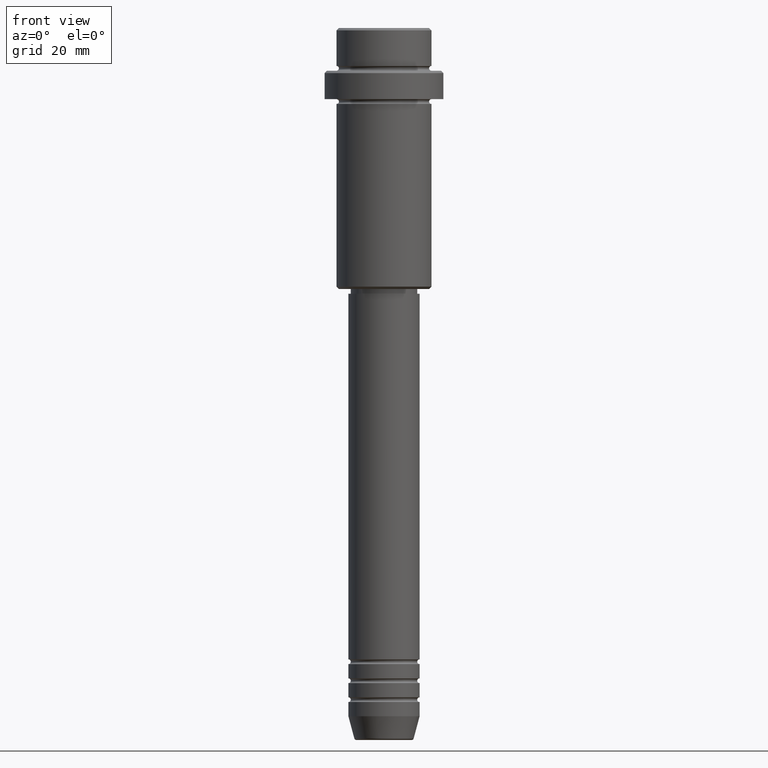
[diagram: clean part render]
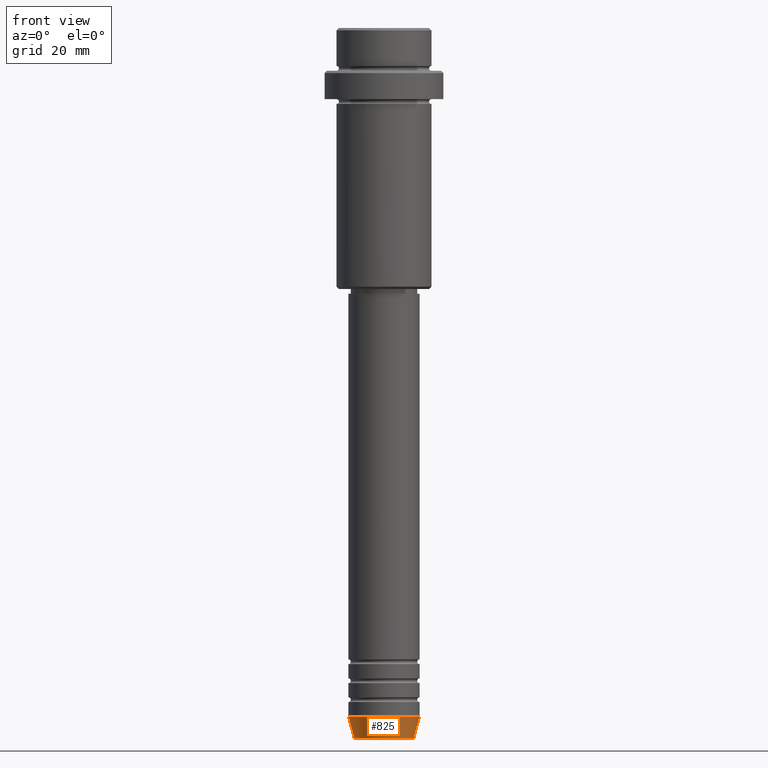
[diagram: same view with one face highlighted and labeled with its STEP entity id]
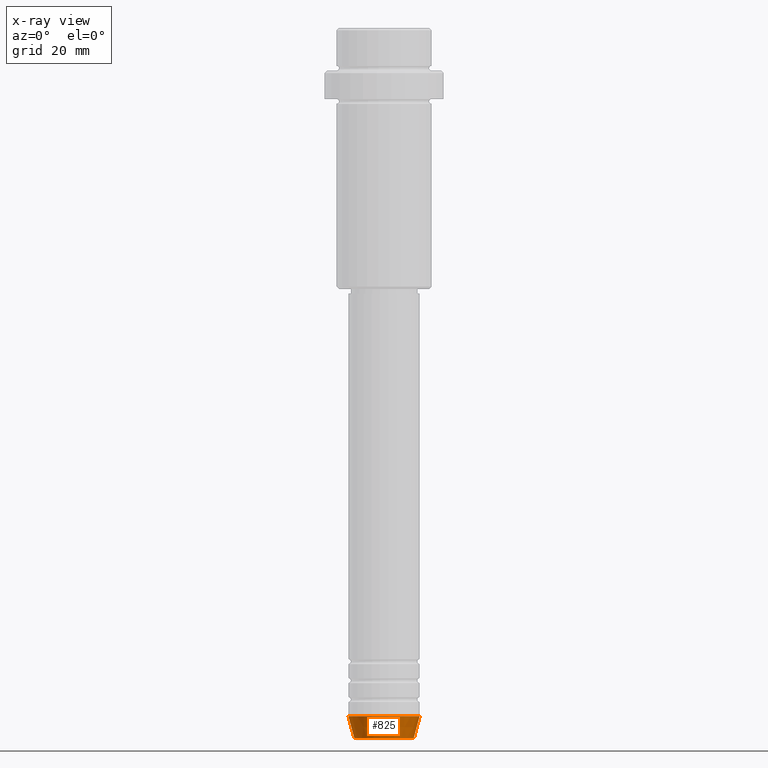
[diagram: x-ray of the same camera — body ghosted, the highlighted face saturated]
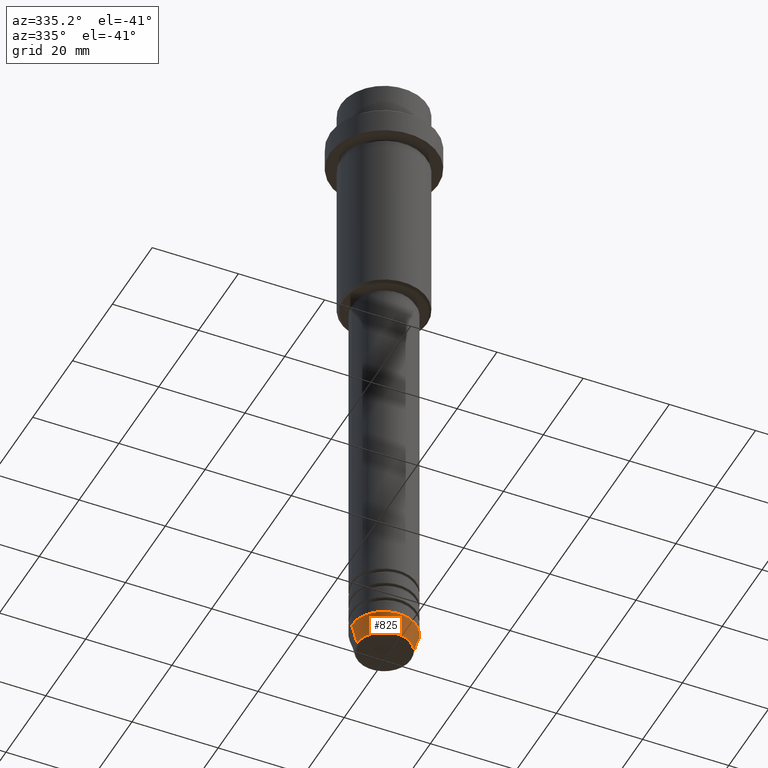
[diagram: same view with one face highlighted and labeled with its STEP entity id]
A machine part, front view. The second image highlights one B-rep face of the part: STEP entity #825.
The next image is the same camera in x-ray: the body ghosted, the highlighted face saturated — about 0% of this face is hidden behind the body in this view.
A second angle (auxiliary view) of the same face is appended — the face is thin or edge-on in the first view.
In plain terms, the highlighted conical surface has half-angle 15 deg.
Its self-contained STEP definition (entity closure, byte-faithful):
#5 = DIRECTION ( 'NONE',  ( -0.000000000000000000, -0.000000000000000000, 1.000000000000000000 ) ) ;
#116 = DIRECTION ( 'NONE',  ( -0.000000000000000000, -0.000000000000000000, 1.000000000000000000 ) ) ;
#243 = CONICAL_SURFACE ( 'NONE', #1386, 7.500000000000000000, 0.2617993877991514617 ) ;
#246 = EDGE_CURVE ( 'NONE', #542, #1073, #1290, .T. ) ;
#271 = DIRECTION ( 'NONE',  ( 1.000000000000000000, 0.000000000000000000, 0.000000000000000000 ) ) ;
#338 = EDGE_CURVE ( 'NONE', #542, #660, #908, .T. ) ;
#393 = AXIS2_PLACEMENT_3D ( 'NONE', #735, #5, #961 ) ;
#412 = VECTOR ( 'NONE', #898, 1000.000000000000114 ) ;
#465 = EDGE_CURVE ( 'NONE', #1073, #1135, #1243, .T. ) ;
#495 = CARTESIAN_POINT ( 'NONE',  ( 7.500000000000000000, 0.000000000000000000, -145.0000000000000000 ) ) ;
#542 = VERTEX_POINT ( 'NONE', #937 ) ;
#550 = DIRECTION ( 'NONE',  ( 1.000000000000000000, 0.000000000000000000, 0.000000000000000000 ) ) ;
#551 = ORIENTED_EDGE ( 'NONE', *, *, #465, .T. ) ;
#587 = CIRCLE ( 'NONE', #1128, 7.500000000000000000 ) ;
#643 = EDGE_LOOP ( 'NONE', ( #848, #1014, #551, #1238 ) ) ;
#660 = VERTEX_POINT ( 'NONE', #1082 ) ;
#662 = CARTESIAN_POINT ( 'NONE',  ( 0.000000000000000000, 0.000000000000000000, -145.0000000000000000 ) ) ;
#735 = CARTESIAN_POINT ( 'NONE',  ( 0.000000000000000000, 0.000000000000000000, -149.6294095225512422 ) ) ;
#765 = VECTOR ( 'NONE', #808, 1000.000000000000114 ) ;
#808 = DIRECTION ( 'NONE',  ( 0.2588190451025227379, 0.000000000000000000, 0.9659258262890676461 ) ) ;
#825 = ADVANCED_FACE ( 'NONE', ( #904 ), #243, .T. ) ;
#848 = ORIENTED_EDGE ( 'NONE', *, *, #338, .F. ) ;
#898 = DIRECTION ( 'NONE',  ( -0.2588190451025227379, 3.169619151431788361E-17, 0.9659258262890676461 ) ) ;
#904 = FACE_OUTER_BOUND ( 'NONE', #643, .T. ) ;
#908 = LINE ( 'NONE', #1229, #412 ) ;
#937 = CARTESIAN_POINT ( 'NONE',  ( -6.259553456999435106, 8.425296549405626528E-16, -149.6294095225512422 ) ) ;
#961 = DIRECTION ( 'NONE',  ( 1.000000000000000000, 0.000000000000000000, 0.000000000000000000 ) ) ;
#982 = CARTESIAN_POINT ( 'NONE',  ( 7.500000000000000000, 0.000000000000000000, -145.0000000000000000 ) ) ;
#1014 = ORIENTED_EDGE ( 'NONE', *, *, #246, .T. ) ;
#1015 = CARTESIAN_POINT ( 'NONE',  ( 0.000000000000000000, 0.000000000000000000, -145.0000000000000000 ) ) ;
#1073 = VERTEX_POINT ( 'NONE', #1393 ) ;
#1082 = CARTESIAN_POINT ( 'NONE',  ( -7.500000000000000000, 9.184850993605147944E-16, -145.0000000000000000 ) ) ;
#1128 = AXIS2_PLACEMENT_3D ( 'NONE', #1015, #1373, #271 ) ;
#1135 = VERTEX_POINT ( 'NONE', #982 ) ;
#1229 = CARTESIAN_POINT ( 'NONE',  ( -7.500000000000000000, 9.184850993605147944E-16, -145.0000000000000000 ) ) ;
#1238 = ORIENTED_EDGE ( 'NONE', *, *, #1344, .F. ) ;
#1243 = LINE ( 'NONE', #495, #765 ) ;
#1290 = CIRCLE ( 'NONE', #393, 6.259553456999435106 ) ;
#1344 = EDGE_CURVE ( 'NONE', #660, #1135, #587, .T. ) ;
#1373 = DIRECTION ( 'NONE',  ( -0.000000000000000000, -0.000000000000000000, 1.000000000000000000 ) ) ;
#1386 = AXIS2_PLACEMENT_3D ( 'NONE', #662, #116, #550 ) ;
#1393 = CARTESIAN_POINT ( 'NONE',  ( 6.259553456999435106, 0.000000000000000000, -149.6294095225512422 ) ) ;